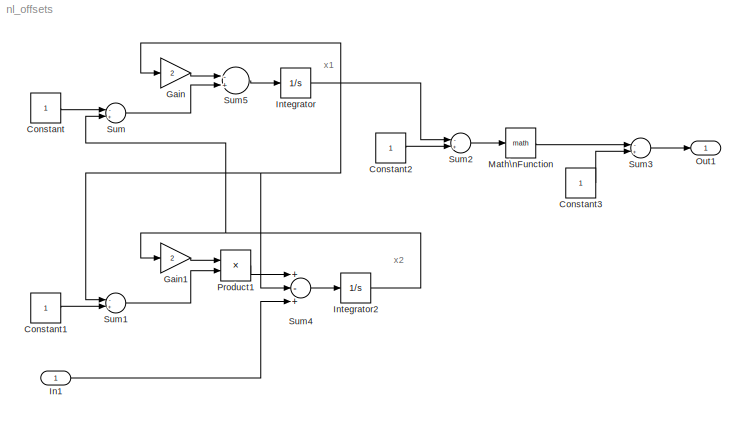
MODEL nl_offsets
KIND model
BLOCK [Constant] Constant
BLOCK [Constant] Constant1
BLOCK [Constant] Constant2
BLOCK [Constant] Constant3
BLOCK [Gain] Gain
  Gain = 2
BLOCK [Gain] Gain1
  Gain = 2
BLOCK [Inport] In1
  IconDisplay = Port number
  LatchInput = off
BLOCK [Integrator] Integrator
  InitialCondition = 0.7
  Ports = [1, 1]
BLOCK [Integrator] Integrator2
  InitialCondition = 1
  Ports = [1, 1]
BLOCK [Math] Math\nFunction
  Ports = [1, 1]
BLOCK [Outport] Out1
  IconDisplay = Port number
BLOCK [Product] Product1
  Ports = [2, 1]
BLOCK [Sum] Sum
  Inputs = -+
  Ports = [2, 1]
BLOCK [Sum] Sum1
  Inputs = -+
  Ports = [2, 1]
BLOCK [Sum] Sum2
  Inputs = -+
  Ports = [2, 1]
BLOCK [Sum] Sum3
  Inputs = -+
  Ports = [2, 1]
BLOCK [Sum] Sum4
  Inputs = +-+
  Ports = [3, 1]
BLOCK [Sum] Sum5
  Inputs = -+
  Ports = [2, 1]
ANNOTATION (root): x1
ANNOTATION (root): x2
LINE Constant1:1 -> Sum1:2
LINE Constant2:1 -> Sum2:2
LINE Constant3:1 -> Sum3:2
LINE Constant:1 -> Sum:1
LINE Gain1:1 -> Product1:1
LINE Gain:1 -> Sum5:1
LINE In1:1 -> Sum4:3
NET Integrator2:1 -> Gain1:1, Sum:2
NET Integrator:1 -> Gain:1, Sum1:1, Sum2:1, Sum4:2
LINE Math\nFunction:1 -> Sum3:1
LINE Product1:1 -> Sum4:1
LINE Sum1:1 -> Product1:2
LINE Sum2:1 -> Math\nFunction:1
LINE Sum3:1 -> Out1:1
LINE Sum4:1 -> Integrator2:1
LINE Sum5:1 -> Integrator:1
LINE Sum:1 -> Sum5:2
note: NET lines group one-source signal fan-out (src -> all destinations, sorted); 1:1 wires keep LINE
